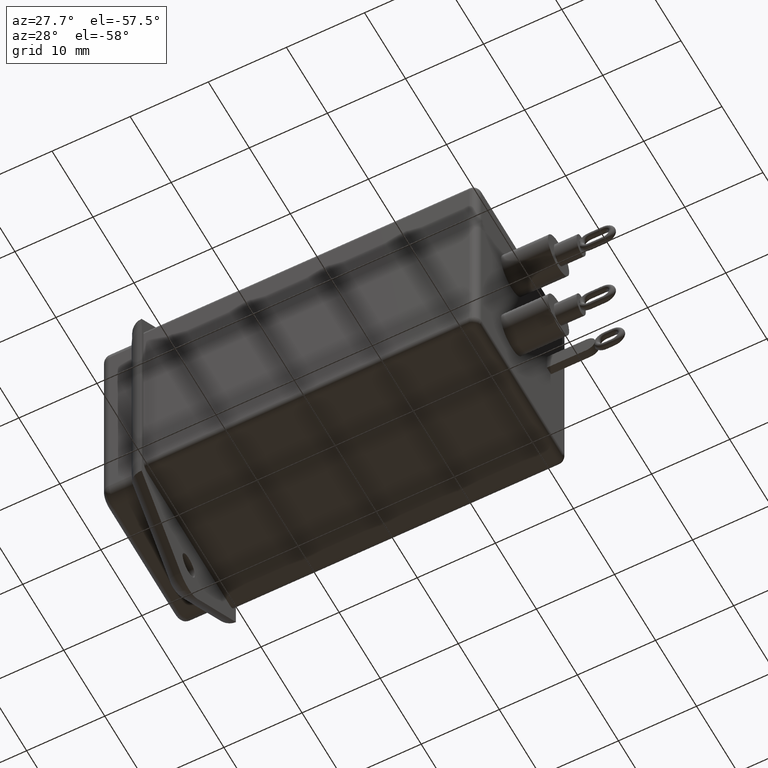
[diagram: clean part render]
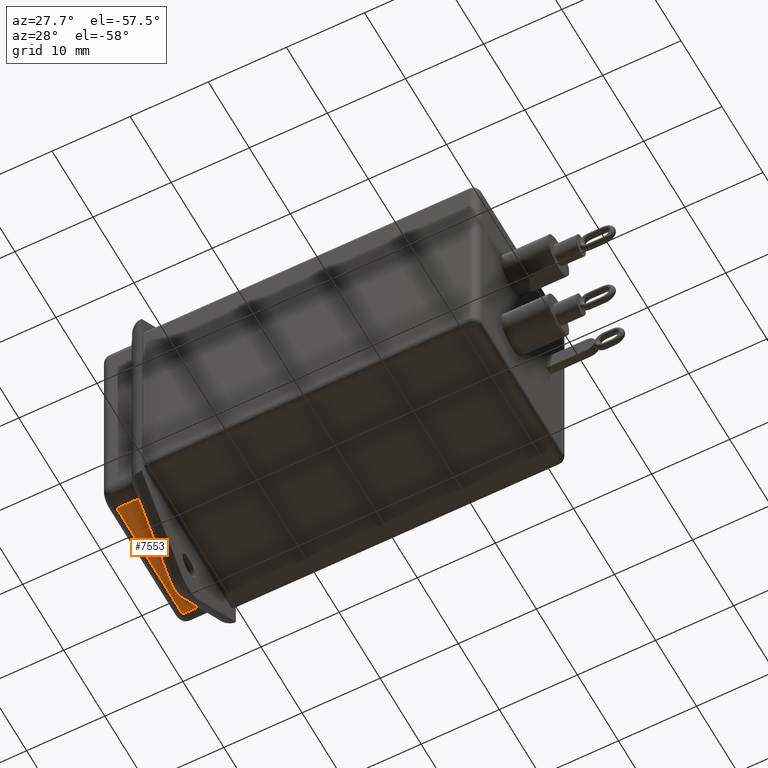
[diagram: same view with one face highlighted and labeled with its STEP entity id]
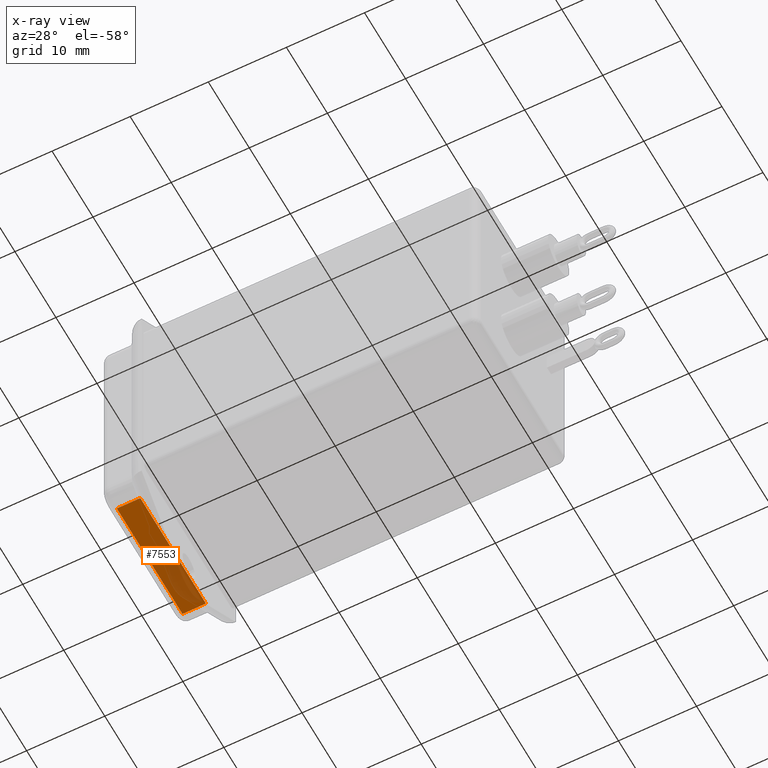
[diagram: x-ray of the same camera — body ghosted, the highlighted face saturated]
A machine part, auxiliary view. The second image highlights one B-rep face of the part: STEP entity #7553.
The next image is the same camera in x-ray: the body ghosted, the highlighted face saturated — about 21% of this face is hidden behind the body in this view.
In plain terms, the highlighted planar face has unit normal (0, -0, 1).
Its self-contained STEP definition (entity closure, byte-faithful):
#443 = CARTESIAN_POINT ( 'NONE',  ( 4.000000000000000000, -2.000000000000000000, -2.449293598294706400E-016 ) ) ;
#488 = CARTESIAN_POINT ( 'NONE',  ( 1.000000000000000000, -18.00000000000000400, -2.204364238465235800E-015 ) ) ;
#590 = VERTEX_POINT ( 'NONE', #488 ) ;
#854 = CARTESIAN_POINT ( 'NONE',  ( 6.000000000000000000, -18.00000000000000400, -2.204364238465235800E-015 ) ) ;
#1644 = EDGE_CURVE ( 'NONE', #2416, #7667, #2028, .T. ) ;
#2028 = LINE ( 'NONE', #4379, #4206 ) ;
#2072 = VECTOR ( 'NONE', #4283, 1000.000000000000000 ) ;
#2339 = VERTEX_POINT ( 'NONE', #3910 ) ;
#2416 = VERTEX_POINT ( 'NONE', #5085 ) ;
#2535 = CARTESIAN_POINT ( 'NONE',  ( 1.000000000000000000, -2.000000000000000000, -2.449293598294706400E-016 ) ) ;
#2840 = ORIENTED_EDGE ( 'NONE', *, *, #4694, .T. ) ;
#2867 = EDGE_CURVE ( 'NONE', #2339, #590, #7773, .T. ) ;
#3024 = ORIENTED_EDGE ( 'NONE', *, *, #1644, .T. ) ;
#3041 = VECTOR ( 'NONE', #5176, 1000.000000000000000 ) ;
#3193 = ORIENTED_EDGE ( 'NONE', *, *, #6720, .T. ) ;
#3269 = DIRECTION ( 'NONE',  ( 0.0000000000000000000, -1.000000000000000000, -1.224646799147353200E-016 ) ) ;
#3910 = CARTESIAN_POINT ( 'NONE',  ( 4.000000000000000000, -18.00000000000000400, -2.204364238465235800E-015 ) ) ;
#4149 = LINE ( 'NONE', #4204, #2072 ) ;
#4204 = CARTESIAN_POINT ( 'NONE',  ( 4.000000000000000000, 0.0000000000000000000, 0.0000000000000000000 ) ) ;
#4206 = VECTOR ( 'NONE', #6795, 1000.000000000000000 ) ;
#4283 = DIRECTION ( 'NONE',  ( 0.0000000000000000000, -1.000000000000000000, -1.224646799147353200E-016 ) ) ;
#4379 = CARTESIAN_POINT ( 'NONE',  ( 6.000000000000000000, -2.000000000000000000, -2.449293598294706400E-016 ) ) ;
#4438 = PLANE ( 'NONE',  #5470 ) ;
#4694 = EDGE_CURVE ( 'NONE', #7667, #2339, #4149, .T. ) ;
#4865 = FACE_OUTER_BOUND ( 'NONE', #5382, .T. ) ;
#4943 = DIRECTION ( 'NONE',  ( 0.0000000000000000000, 1.000000000000000000, 1.224646799147353200E-016 ) ) ;
#5085 = CARTESIAN_POINT ( 'NONE',  ( 1.000000000000000000, -2.000000000000000000, -2.449293598294706400E-016 ) ) ;
#5176 = DIRECTION ( 'NONE',  ( -1.000000000000000000, 0.0000000000000000000, 0.0000000000000000000 ) ) ;
#5382 = EDGE_LOOP ( 'NONE', ( #7966, #3193, #3024, #2840 ) ) ;
#5470 = AXIS2_PLACEMENT_3D ( 'NONE', #6971, #6989, #3269 ) ;
#5657 = VECTOR ( 'NONE', #4943, 1000.000000000000000 ) ;
#6720 = EDGE_CURVE ( 'NONE', #590, #2416, #7665, .T. ) ;
#6795 = DIRECTION ( 'NONE',  ( 1.000000000000000000, -0.0000000000000000000, -0.0000000000000000000 ) ) ;
#6971 = CARTESIAN_POINT ( 'NONE',  ( 6.000000000000000000, 0.0000000000000000000, 0.0000000000000000000 ) ) ;
#6989 = DIRECTION ( 'NONE',  ( 0.0000000000000000000, -1.224646799147353200E-016, 1.000000000000000000 ) ) ;
#7553 = ADVANCED_FACE ( 'NONE', ( #4865 ), #4438, .F. ) ;
#7665 = LINE ( 'NONE', #2535, #5657 ) ;
#7667 = VERTEX_POINT ( 'NONE', #443 ) ;
#7773 = LINE ( 'NONE', #854, #3041 ) ;
#7966 = ORIENTED_EDGE ( 'NONE', *, *, #2867, .T. ) ;